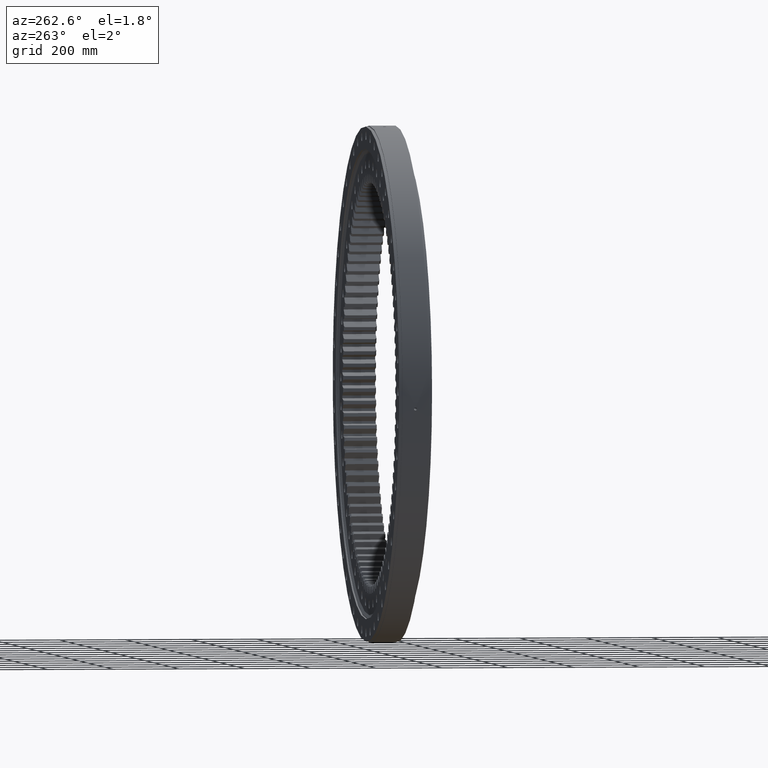
[diagram: clean part render]
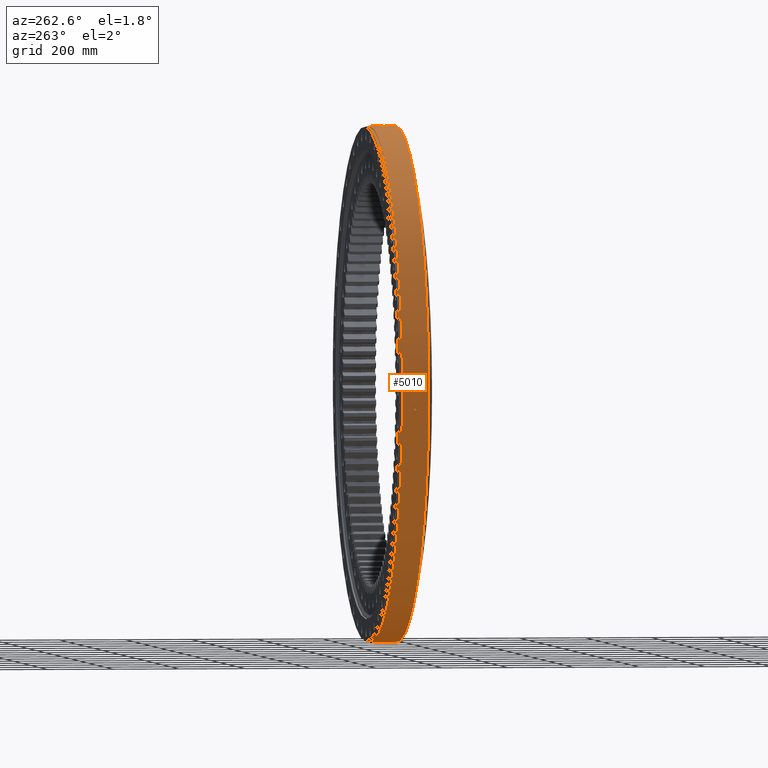
[diagram: same view with one face highlighted and labeled with its STEP entity id]
A machine part, auxiliary view. The second image highlights one B-rep face of the part: STEP entity #5010.
In plain terms, the highlighted cylindrical surface (partial cylindrical patch) has radius 780 mm, axis along (0, -1, -0).
Its self-contained STEP definition (entity closure, byte-faithful):
#540 = FACE_BOUND ( 'NONE', #13653, .T. ) ;
#652 = VECTOR ( 'NONE', #10437, 1000.000000000000000 ) ;
#961 = VERTEX_POINT ( 'NONE', #16702 ) ;
#1542 = CIRCLE ( 'NONE', #24289, 780.0000000000000000 ) ;
#2136 = EDGE_CURVE ( 'NONE', #7273, #961, #12283, .T. ) ;
#2426 = CARTESIAN_POINT ( 'NONE',  ( -4.694788894176785100E-015, 40.00000000000014200, 1.397686942154318400E-015 ) ) ;
#3313 = CARTESIAN_POINT ( 'NONE',  ( -49.84914357301659700, -4.355729221273335800, 778.4055148812640300 ) ) ;
#4296 = B_SPLINE_CURVE_WITH_KNOTS ( 'NONE', 3,
 ( #26614, #26247, #26053, #25983, #25883, #25853, #25848, #25778, #25743, #25595, #25587, #25521, #25498, #25496, #25470, #25426, #25396, #25393, #25325, #25273, #25233, #25207, #25169, #25127, #25103, #25099, #25023, #24994, #24960, #24953, #24899, #24860, #24856, #24796 ),
 .UNSPECIFIED., .F., .F.,
 ( 4, 2, 2, 2, 2, 2, 2, 2, 2, 2, 2, 2, 2, 2, 2, 2, 4 ),
 ( 1.074762393797397800E-018, 0.0008793179351289042300, 0.001758635870257807400, 0.002637953805386710200, 0.003517271740515613400, 0.004396589675644516300, 0.005275907610773419500, 0.006155225545902322800, 0.007034543481031226000, 0.007913861416160130100, 0.008793179351289032500, 0.009672497286417936600, 0.01055181522154683900, 0.01143113315667574300, 0.01231045109180464600, 0.01318976902693355000, 0.01406908696206245200 ),
 .UNSPECIFIED. ) ;
#4473 = CARTESIAN_POINT ( 'NONE',  ( -55.50395696409336200, -1.191663288567802800E-008, 778.0226929603841200 ) ) ;
#4583 = CARTESIAN_POINT ( 'NONE',  ( -55.50395696409339800, -0.2972590398184704100, 778.0226929603844600 ) ) ;
#4686 = CARTESIAN_POINT ( 'NONE',  ( -55.47486228584178700, -0.5914354532429624300, 778.0247701997225200 ) ) ;
#4785 = CARTESIAN_POINT ( 'NONE',  ( -55.35870976945393800, -1.173647210046652200, 778.0330434130833100 ) ) ;
#4873 = CARTESIAN_POINT ( 'NONE',  ( -55.27264130081599100, -1.455745467214809600, 778.0391685290567200 ) ) ;
#5005 = CARTESIAN_POINT ( 'NONE',  ( -55.04833319098530400, -1.997034753935019500, 778.0550710937171700 ) ) ;
#5010 = ADVANCED_FACE ( 'NONE', ( #540, #7626, #13315 ), #18140, .T. ) ;
#5115 = CARTESIAN_POINT ( 'NONE',  ( -54.90821490620543000, -2.259570779800355000, 778.0649812028916600 ) ) ;
#5194 = CARTESIAN_POINT ( 'NONE',  ( -53.97957031901950800, -3.391803341662482700, 778.1299693456908200 ) ) ;
#5223 = CARTESIAN_POINT ( 'NONE',  ( -54.39428581073345700, -2.976677175087144400, 778.1010891117503000 ) ) ;
#5364 = CARTESIAN_POINT ( 'NONE',  ( -53.74829391534717600, -3.581693943415869000, 778.1459893008853900 ) ) ;
#5538 = CARTESIAN_POINT ( 'NONE',  ( -53.26051258779922600, -3.907537433875630600, 778.1795278486508800 ) ) ;
#5578 = CARTESIAN_POINT ( 'NONE',  ( -53.00253340720728800, -4.045624433861426000, 778.1971510725071500 ) ) ;
#5607 = CARTESIAN_POINT ( 'NONE',  ( -52.45794350086281100, -4.271337544444923800, 778.2340513294244600 ) ) ;
#5708 = CARTESIAN_POINT ( 'NONE',  ( -52.17342480459289800, -4.357379535394106700, 778.2531827100194700 ) ) ;
#5820 = CARTESIAN_POINT ( 'NONE',  ( -51.59970583353363300, -4.471227448999602700, 778.2914319276604800 ) ) ;
#5893 = CARTESIAN_POINT ( 'NONE',  ( -51.30671751956293700, -4.500248252878238400, 778.3108047330100600 ) ) ;
#5915 = LINE ( 'NONE', #16369, #24849 ) ;
#5935 = CARTESIAN_POINT ( 'NONE',  ( -50.71460167549569300, -4.499748580087064900, 778.3496111669061300 ) ) ;
#6058 = CARTESIAN_POINT ( 'NONE',  ( -50.42314983927573000, -4.470446165586584400, 778.3685429620181800 ) ) ;
#6132 = CARTESIAN_POINT ( 'NONE',  ( -49.56355915301539700, -4.268830562518370900, 778.4237455310402500 ) ) ;
#6162 = CARTESIAN_POINT ( 'NONE',  ( -48.76273812759185900, -3.904566927462565400, 778.4743125145275800 ) ) ;
#6320 = CARTESIAN_POINT ( 'NONE',  ( -48.27429981455153300, -3.577391859910664900, 778.5047539046122400 ) ) ;
#6331 = CARTESIAN_POINT ( 'NONE',  ( -47.44380163121300600, -2.745436544223951000, 778.5557865492912700 ) ) ;
#6411 = CARTESIAN_POINT ( 'NONE',  ( -47.62970898566337800, -2.972153885208485700, 778.5444456105376500 ) ) ;
#6482 = CARTESIAN_POINT ( 'NONE',  ( -46.97642868434872600, -1.991444298768980700, 778.5841172952127600 ) ) ;
#6552 = CARTESIAN_POINT ( 'NONE',  ( -46.75272375233436900, -1.449882988554883600, 778.5975824378336900 ) ) ;
#6587 = CARTESIAN_POINT ( 'NONE',  ( -46.66645876322883200, -1.165409874945901600, 778.6027516867357000 ) ) ;
#6620 = CARTESIAN_POINT ( 'NONE',  ( -46.55163983603154100, -0.5854524461712448100, 778.6096249958853800 ) ) ;
#6879 = CARTESIAN_POINT ( 'NONE',  ( -46.52322665494592300, -1.191663346801548200E-008, 778.6113211234554700 ) ) ;
#7057 = CARTESIAN_POINT ( 'NONE',  ( -46.52322665494592300, -1.191663346801548200E-008, 778.6113211234554700 ) ) ;
#7098 = CARTESIAN_POINT ( 'NONE',  ( -46.52322665494590800, 0.2936959525001911500, 778.6113211234551300 ) ) ;
#7147 = VERTEX_POINT ( 'NONE', #29808 ) ;
#7197 = CARTESIAN_POINT ( 'NONE',  ( -46.55260371073139700, 0.5919604731874318300, 778.6095673666088700 ) ) ;
#7228 = CARTESIAN_POINT ( 'NONE',  ( -46.66741236925686600, 1.168559424102521200, 778.6026945302871800 ) ) ;
#7234 = CARTESIAN_POINT ( 'NONE',  ( -46.75231736424668600, 1.449116080654817600, 778.5976069691255400 ) ) ;
#7257 = CARTESIAN_POINT ( 'NONE',  ( -46.97780282519429600, 1.994553032517874600, 778.5840345130982300 ) ) ;
#7273 = VERTEX_POINT ( 'NONE', #27685 ) ;
#7287 = CARTESIAN_POINT ( 'NONE',  ( -47.11837591520003300, 2.257523350805082300, 778.5755488110493200 ) ) ;
#7292 = CARTESIAN_POINT ( 'NONE',  ( -47.44369261204333600, 2.744954639067043600, 778.5557928540811200 ) ) ;
#7420 = VERTEX_POINT ( 'NONE', #25083 ) ;
#7438 = CARTESIAN_POINT ( 'NONE',  ( -47.62992599242463900, 2.972768192775557600, 778.5444330867019300 ) ) ;
#7444 = CARTESIAN_POINT ( 'NONE',  ( -48.04932696575831800, 3.392751000907746400, 778.5186615094562500 ) ) ;
#7470 = CARTESIAN_POINT ( 'NONE',  ( -48.27618944952313700, 3.578756085474676100, 778.5046364624162200 ) ) ;
#7509 = CARTESIAN_POINT ( 'NONE',  ( -48.76293852314622500, 3.904602214458481800, 778.4742996964209900 ) ) ;
#7548 = CARTESIAN_POINT ( 'NONE',  ( -49.02598205619862900, 4.045566661986369700, 778.4577877418859100 ) ) ;
#7556 = CARTESIAN_POINT ( 'NONE',  ( -49.56973244155400900, 4.270949395259672000, 778.4233525776563700 ) ) ;
#7582 = CARTESIAN_POINT ( 'NONE',  ( -49.84968894123130000, 4.355942315729162600, 778.4054803217858300 ) ) ;
#7615 = CARTESIAN_POINT ( 'NONE',  ( -50.42566956916996900, 4.470845037289014300, 778.3683800945596000 ) ) ;
#7617 = VERTEX_POINT ( 'NONE', #21510 ) ;
#7626 = FACE_BOUND ( 'NONE', #21815, .T. ) ;
#7657 = CARTESIAN_POINT ( 'NONE',  ( -50.72315351910881300, 4.500103720131336100, 778.3490527028803900 ) ) ;
#7665 = CARTESIAN_POINT ( 'NONE',  ( -51.30891071940003900, 4.499895690884436300, 778.3106589448608500 ) ) ;
#7724 = CARTESIAN_POINT ( 'NONE',  ( -51.60028322795572800, 4.471354307561180800, 778.2913947508732200 ) ) ;
#7755 = CARTESIAN_POINT ( 'NONE',  ( -52.17993505043647000, 4.355843198341657900, 778.2527473453573100 ) ) ;
#7760 = VERTEX_POINT ( 'NONE', #17800 ) ;
#7761 = CARTESIAN_POINT ( 'NONE',  ( -52.46288832430056500, 4.269502317692230900, 778.2337172558366100 ) ) ;
#7821 = CARTESIAN_POINT ( 'NONE',  ( -53.00322163915681300, 4.045122667237238900, 778.1971034519700700 ) ) ;
#7858 = CARTESIAN_POINT ( 'NONE',  ( -53.26458334573008800, 3.905345519600695000, 778.1792497087282100 ) ) ;
#7884 = CARTESIAN_POINT ( 'NONE',  ( -53.75542517380560500, 3.576390565677366200, 778.1454971794264600 ) ) ;
#7888 = CARTESIAN_POINT ( 'NONE',  ( -46.52322665494591500, -0.2936296904796089100, 778.6113211234553500 ) ) ;
#7925 = CARTESIAN_POINT ( 'NONE',  ( -53.98147792850658500, 3.390113801547519000, 778.1298369526471100 ) ) ;
#7962 = CARTESIAN_POINT ( 'NONE',  ( -54.39575901906711400, 2.974980699756850200, 778.1009860654583000 ) ) ;
#7966 = CARTESIAN_POINT ( 'NONE',  ( -54.58540843334259300, 2.743367386342545600, 778.0876941952298000 ) ) ;
#7991 = CARTESIAN_POINT ( 'NONE',  ( -54.91123342244150500, 2.254168528153292200, 778.0647679441027500 ) ) ;
#8022 = CARTESIAN_POINT ( 'NONE',  ( -55.04914016879796200, 1.995678894004786300, 778.0550140747906200 ) ) ;
#8061 = CARTESIAN_POINT ( 'NONE',  ( -55.27449701930163400, 1.450668767809029100, 778.0390367709767400 ) ) ;
#8069 = CARTESIAN_POINT ( 'NONE',  ( -55.36081458175257100, 1.164865000228676700, 778.0328935697435800 ) ) ;
#8089 = CARTESIAN_POINT ( 'NONE',  ( -55.50395696409336200, -1.191663288567802800E-008, 778.0226929603841200 ) ) ;
#8091 = CARTESIAN_POINT ( 'NONE',  ( -55.50395696409336200, -1.191663288567802800E-008, 778.0226929603841200 ) ) ;
#8260 = EDGE_CURVE ( 'NONE', #15624, #9989, #16486, .T. ) ;
#8279 = CARTESIAN_POINT ( 'NONE',  ( -55.47485261993542600, 0.5896830564248469700, 778.0247708103260000 ) ) ;
#8394 = CARTESIAN_POINT ( 'NONE',  ( -55.50395696409338300, 0.2973261211517332900, 778.0226929603841200 ) ) ;
#9989 = VERTEX_POINT ( 'NONE', #17814 ) ;
#10265 = DIRECTION ( 'NONE',  ( -5.551115123125783900E-017, 8.896017825522088100E-017, -1.000000000000000000 ) ) ;
#10373 = DIRECTION ( 'NONE',  ( -1.173697223544192200E-016, 1.000000000000000000, 8.822830751849692900E-017 ) ) ;
#10437 = DIRECTION ( 'NONE',  ( 1.173697223544192200E-016, -1.000000000000000000, -3.494217355385783800E-017 ) ) ;
#10655 = CARTESIAN_POINT ( 'NONE',  ( 4.590003909538970900E-014, -22.16364734299519800, 780.0000000000000000 ) ) ;
#10699 = CARTESIAN_POINT ( 'NONE',  ( -47.11527095205012500, -2.252549668196207400, 778.5757370517799200 ) ) ;
#11564 = DIRECTION ( 'NONE',  ( 1.173697223544192200E-016, -1.000000000000000000, -3.494217355385783800E-017 ) ) ;
#12178 = EDGE_LOOP ( 'NONE', ( #18091, #19527, #25398, #18820 ) ) ;
#12283 = B_SPLINE_CURVE_WITH_KNOTS ( 'NONE', 3,
 ( #17989, #18089, #17645, #24919, #17506, #17480, #17476, #17378, #17370, #17132, #17072, #16971, #16874, #16839, #16521, #16241, #15755, #15443, #15150, #15372, #15335, #15300, #15298, #15078, #14951, #14300, #14775, #14735, #14473, #14544, #14466, #14677, #14276, #14331 ),
 .UNSPECIFIED., .F., .F.,
 ( 4, 2, 2, 2, 2, 2, 2, 2, 2, 2, 2, 2, 2, 2, 2, 2, 4 ),
 ( 0.01406908696206245200, 0.01494820643910137000, 0.01582732591614028800, 0.01670644539317920800, 0.01758556487021812800, 0.01846468434725704800, 0.01934380382429596800, 0.02022292330133488800, 0.02110204277837380800, 0.02198116225541272800, 0.02286028173245164800, 0.02373940120949056800, 0.02461852068652948700, 0.02549764016356840700, 0.02637675964060732700, 0.02725587911764624700, 0.02813499859468516700 ),
 .UNSPECIFIED. ) ;
#13315 = FACE_OUTER_BOUND ( 'NONE', #12178, .T. ) ;
#13628 = ORIENTED_EDGE ( 'NONE', *, *, #2136, .T. ) ;
#13653 = EDGE_LOOP ( 'NONE', ( #19494, #20969 ) ) ;
#14276 = CARTESIAN_POINT ( 'NONE',  ( -778.0226929603841200, -0.2972590398185253100, -55.50395696409609100 ) ) ;
#14300 = CARTESIAN_POINT ( 'NONE',  ( -778.1010891117501800, -2.976677175087196800, -54.39428581073618600 ) ) ;
#14331 = CARTESIAN_POINT ( 'NONE',  ( -778.0226929603840100, -1.191668835744469300E-008, -55.50395696409608300 ) ) ;
#14405 = DIRECTION ( 'NONE',  ( 1.173697223544192200E-016, -1.000000000000000000, -3.494217355385783800E-017 ) ) ;
#14466 = CARTESIAN_POINT ( 'NONE',  ( -778.0330434130830800, -1.173647210046705000, -55.35870976945664500 ) ) ;
#14473 = CARTESIAN_POINT ( 'NONE',  ( -778.0550710937169500, -1.997034753935078300, -55.04833319098803900 ) ) ;
#14544 = CARTESIAN_POINT ( 'NONE',  ( -778.0391685290565000, -1.455745467214868400, -55.27264130081870500 ) ) ;
#14552 = CIRCLE ( 'NONE', #18147, 780.0000000000000000 ) ;
#14677 = CARTESIAN_POINT ( 'NONE',  ( -778.0247701997218400, -0.5914354532430172700, -55.47486228584449500 ) ) ;
#14735 = CARTESIAN_POINT ( 'NONE',  ( -778.0649812028914300, -2.259570779800410500, -54.90821490620814400 ) ) ;
#14775 = CARTESIAN_POINT ( 'NONE',  ( -778.0880627137859200, -2.750357340521893100, -54.58015848960110400 ) ) ;
#14776 = CARTESIAN_POINT ( 'NONE',  ( 4.694788894176749600E-015, -39.99999999999984400, -1.397686942154308100E-015 ) ) ;
#14951 = CARTESIAN_POINT ( 'NONE',  ( -778.1299693456906000, -3.391803341662533700, -53.97957031902223000 ) ) ;
#15078 = CARTESIAN_POINT ( 'NONE',  ( -778.1459893008853900, -3.581693943415919200, -53.74829391534990500 ) ) ;
#15150 = CARTESIAN_POINT ( 'NONE',  ( -778.2914319276601400, -4.471227448999658600, -51.59970583353636900 ) ) ;
#15298 = CARTESIAN_POINT ( 'NONE',  ( -778.1795278486508800, -3.907537433875682100, -53.26051258780196900 ) ) ;
#15300 = CARTESIAN_POINT ( 'NONE',  ( -778.1971510725069300, -4.045624433861478400, -53.00253340721000900 ) ) ;
#15335 = CARTESIAN_POINT ( 'NONE',  ( -778.2340513294242300, -4.271337544444976200, -52.45794350086553200 ) ) ;
#15372 = CARTESIAN_POINT ( 'NONE',  ( -778.2531827100190200, -4.357379535394158200, -52.17342480459563300 ) ) ;
#15443 = CARTESIAN_POINT ( 'NONE',  ( -778.3108047330102900, -4.500248252878294300, -51.30671751956565200 ) ) ;
#15607 = EDGE_CURVE ( 'NONE', #7617, #7420, #24442, .T. ) ;
#15624 = VERTEX_POINT ( 'NONE', #8089 ) ;
#15755 = CARTESIAN_POINT ( 'NONE',  ( -778.3496111669060200, -4.499748580087121800, -50.71460167549842900 ) ) ;
#16241 = CARTESIAN_POINT ( 'NONE',  ( -778.3685429620180700, -4.470446165586640300, -50.42314983927845900 ) ) ;
#16369 = CARTESIAN_POINT ( 'NONE',  ( -1.362198071588660500E-013, -22.16364734299514100, -780.0000000000000000 ) ) ;
#16486 = B_SPLINE_CURVE_WITH_KNOTS ( 'NONE', 3,
 ( #8091, #8394, #8279, #8069, #8061, #8022, #7991, #7966, #7962, #7925, #7884, #7858, #7821, #7761, #7755, #7724, #7665, #7657, #7615, #7582, #7556, #7548, #7509, #7470, #7444, #7438, #7292, #7287, #7257, #7234, #7228, #7197, #7098, #7057 ),
 .UNSPECIFIED., .F., .F.,
 ( 4, 2, 2, 2, 2, 2, 2, 2, 2, 2, 2, 2, 2, 2, 2, 2, 4 ),
 ( 2.180248051075275200E-018, 0.0008793179351289065000, 0.001758635870257810800, 0.002637953805386715000, 0.003517271740515619500, 0.004396589675644524100, 0.005275907610773428200, 0.006155225545902333200, 0.007034543481031237300, 0.007913861416160140500, 0.008793179351289044700, 0.009672497286417948800, 0.01055181522154685300, 0.01143113315667575500, 0.01231045109180465800, 0.01318976902693356200, 0.01406908696206246400 ),
 .UNSPECIFIED. ) ;
#16521 = CARTESIAN_POINT ( 'NONE',  ( -778.4055148812639100, -4.355729221273390900, -49.84914357301931200 ) ) ;
#16702 = CARTESIAN_POINT ( 'NONE',  ( -778.0226929603840100, -1.191668835744469300E-008, -55.50395696409608300 ) ) ;
#16839 = CARTESIAN_POINT ( 'NONE',  ( -778.4237455310399100, -4.268830562518429500, -49.56355915301813300 ) ) ;
#16874 = CARTESIAN_POINT ( 'NONE',  ( -778.4581278844744900, -4.042877570510349000, -49.02057866944306100 ) ) ;
#16971 = CARTESIAN_POINT ( 'NONE',  ( -778.4743125145272400, -3.904566927462622200, -48.76273812759456700 ) ) ;
#17072 = CARTESIAN_POINT ( 'NONE',  ( -778.5047539046120200, -3.577391859910723900, -48.27429981455424700 ) ) ;
#17132 = CARTESIAN_POINT ( 'NONE',  ( -778.5190198591584500, -3.387315531045963700, -48.04350826713057600 ) ) ;
#17370 = CARTESIAN_POINT ( 'NONE',  ( -778.5444456105376500, -2.972153885208545200, -47.62970898566610600 ) ) ;
#17378 = CARTESIAN_POINT ( 'NONE',  ( -778.5557865492910400, -2.745436544224008700, -47.44380163121573400 ) ) ;
#17476 = CARTESIAN_POINT ( 'NONE',  ( -778.5757370517798100, -2.252549668196265100, -47.11527095205283900 ) ) ;
#17480 = CARTESIAN_POINT ( 'NONE',  ( -778.5841172952127600, -1.991444298769037500, -46.97642868435145400 ) ) ;
#17506 = CARTESIAN_POINT ( 'NONE',  ( -778.5975824378335800, -1.449882988554941100, -46.75272375233710400 ) ) ;
#17645 = CARTESIAN_POINT ( 'NONE',  ( -778.6096249958856100, -0.5854524461713026500, -46.55163983603427600 ) ) ;
#17800 = CARTESIAN_POINT ( 'NONE',  ( -1.388211482938746700E-013, -39.99999999999981500, -780.0000000000000000 ) ) ;
#17814 = CARTESIAN_POINT ( 'NONE',  ( -46.52322665494592300, -1.191663346801548200E-008, 778.6113211234554700 ) ) ;
#17989 = CARTESIAN_POINT ( 'NONE',  ( -778.6113211234552400, -1.191669056099729700E-008, -46.52322665494863700 ) ) ;
#18089 = CARTESIAN_POINT ( 'NONE',  ( -778.6113211234552400, -0.2936296904796665800, -46.52322665494864400 ) ) ;
#18091 = ORIENTED_EDGE ( 'NONE', *, *, #20932, .F. ) ;
#18140 = CYLINDRICAL_SURFACE ( 'NONE', #24266, 780.0000000000000000 ) ;
#18147 = AXIS2_PLACEMENT_3D ( 'NONE', #14776, #14405, #29316 ) ;
#18680 = EDGE_CURVE ( 'NONE', #9989, #15624, #21789, .T. ) ;
#18762 = CARTESIAN_POINT ( 'NONE',  ( -49.02057866944032600, -4.042877570510290400, 778.4581278844746100 ) ) ;
#18820 = ORIENTED_EDGE ( 'NONE', *, *, #15607, .F. ) ;
#19494 = ORIENTED_EDGE ( 'NONE', *, *, #8260, .T. ) ;
#19527 = ORIENTED_EDGE ( 'NONE', *, *, #30042, .T. ) ;
#20210 = CARTESIAN_POINT ( 'NONE',  ( -54.58015848959838200, -2.750357340521838000, 778.0880627137860300 ) ) ;
#20932 = EDGE_CURVE ( 'NONE', #7147, #7617, #1542, .T. ) ;
#20969 = ORIENTED_EDGE ( 'NONE', *, *, #18680, .T. ) ;
#21510 = CARTESIAN_POINT ( 'NONE',  ( 4.329869796038109200E-014, 40.00000000000007100, 780.0000000000000000 ) ) ;
#21789 = B_SPLINE_CURVE_WITH_KNOTS ( 'NONE', 3,
 ( #6879, #7888, #6620, #6587, #6552, #6482, #10699, #6331, #6411, #30032, #6320, #6162, #18762, #6132, #3313, #6058, #5935, #5893, #5820, #5708, #5607, #5578, #5538, #5364, #5194, #5223, #20210, #5115, #5005, #4873, #4785, #4686, #4583, #4473 ),
 .UNSPECIFIED., .F., .F.,
 ( 4, 2, 2, 2, 2, 2, 2, 2, 2, 2, 2, 2, 2, 2, 2, 2, 4 ),
 ( 0.01406908696206246400, 0.01494820643910138600, 0.01582732591614030600, 0.01670644539317922600, 0.01758556487021814600, 0.01846468434725706500, 0.01934380382429598500, 0.02022292330133490900, 0.02110204277837382900, 0.02198116225541274900, 0.02286028173245167200, 0.02373940120949059200, 0.02461852068652951200, 0.02549764016356843200, 0.02637675964060735200, 0.02725587911764627100, 0.02813499859468518800 ),
 .UNSPECIFIED. ) ;
#21815 = EDGE_LOOP ( 'NONE', ( #24634, #13628 ) ) ;
#24266 = AXIS2_PLACEMENT_3D ( 'NONE', #25665, #26064, #25690 ) ;
#24289 = AXIS2_PLACEMENT_3D ( 'NONE', #2426, #10373, #10265 ) ;
#24442 = LINE ( 'NONE', #10655, #652 ) ;
#24634 = ORIENTED_EDGE ( 'NONE', *, *, #26349, .T. ) ;
#24796 = CARTESIAN_POINT ( 'NONE',  ( -778.6113211234552400, -1.191669056099729700E-008, -46.52322665494863700 ) ) ;
#24849 = VECTOR ( 'NONE', #11564, 1000.000000000000000 ) ;
#24856 = CARTESIAN_POINT ( 'NONE',  ( -778.6113211234554700, 0.2936959525001343600, -46.52322665494864400 ) ) ;
#24860 = CARTESIAN_POINT ( 'NONE',  ( -778.6095673666087600, 0.5919604731873751000, -46.55260371073413200 ) ) ;
#24899 = CARTESIAN_POINT ( 'NONE',  ( -778.6026945302871800, 1.168559424102465300, -46.66741236925958700 ) ) ;
#24919 = CARTESIAN_POINT ( 'NONE',  ( -778.6027516867354700, -1.165409874945959400, -46.66645876323156000 ) ) ;
#24953 = CARTESIAN_POINT ( 'NONE',  ( -778.5976069691256500, 1.449116080654759200, -46.75231736424940000 ) ) ;
#24960 = CARTESIAN_POINT ( 'NONE',  ( -778.5840345130983500, 1.994553032517818000, -46.97780282519702400 ) ) ;
#24994 = CARTESIAN_POINT ( 'NONE',  ( -778.5755488110494300, 2.257523350805028100, -47.11837591520275500 ) ) ;
#25023 = CARTESIAN_POINT ( 'NONE',  ( -778.5557928540808900, 2.744954639066990300, -47.44369261204605000 ) ) ;
#25083 = CARTESIAN_POINT ( 'NONE',  ( 4.799348685455785600E-014, -39.99999999999987200, 780.0000000000000000 ) ) ;
#25099 = CARTESIAN_POINT ( 'NONE',  ( -778.5444330867013600, 2.972768192775503000, -47.62992599242737400 ) ) ;
#25103 = CARTESIAN_POINT ( 'NONE',  ( -778.5186615094562500, 3.392751000907690900, -48.04932696576104700 ) ) ;
#25127 = CARTESIAN_POINT ( 'NONE',  ( -778.5046364624159900, 3.578756085474622300, -48.27618944952586600 ) ) ;
#25169 = CARTESIAN_POINT ( 'NONE',  ( -778.4742996964206400, 3.904602214458426300, -48.76293852314893900 ) ) ;
#25207 = CARTESIAN_POINT ( 'NONE',  ( -778.4577877418854500, 4.045566661986311100, -49.02598205620132200 ) ) ;
#25233 = CARTESIAN_POINT ( 'NONE',  ( -778.4233525776561500, 4.270949395259615100, -49.56973244155672400 ) ) ;
#25273 = CARTESIAN_POINT ( 'NONE',  ( -778.4054803217858300, 4.355942315729104800, -49.84968894123401400 ) ) ;
#25325 = CARTESIAN_POINT ( 'NONE',  ( -778.3683800945594800, 4.470845037288958300, -50.42566956917267600 ) ) ;
#25393 = CARTESIAN_POINT ( 'NONE',  ( -778.3490527028803900, 4.500103720131280100, -50.72315351911155500 ) ) ;
#25396 = CARTESIAN_POINT ( 'NONE',  ( -778.3106589448606200, 4.499895690884380400, -51.30891071940276000 ) ) ;
#25398 = ORIENTED_EDGE ( 'NONE', *, *, #25938, .F. ) ;
#25426 = CARTESIAN_POINT ( 'NONE',  ( -778.2913947508727700, 4.471354307561125700, -51.60028322795845000 ) ) ;
#25470 = CARTESIAN_POINT ( 'NONE',  ( -778.2527473453570800, 4.355843198341604600, -52.17993505043919100 ) ) ;
#25496 = CARTESIAN_POINT ( 'NONE',  ( -778.2337172558363800, 4.269502317692173100, -52.46288832430327200 ) ) ;
#25498 = CARTESIAN_POINT ( 'NONE',  ( -778.1971034519698400, 4.045122667237180300, -53.00322163915953400 ) ) ;
#25521 = CARTESIAN_POINT ( 'NONE',  ( -778.1792497087279800, 3.905345519600636400, -53.26458334573283100 ) ) ;
#25587 = CARTESIAN_POINT ( 'NONE',  ( -778.1454971794263400, 3.576390565677307200, -53.75542517380833400 ) ) ;
#25595 = CARTESIAN_POINT ( 'NONE',  ( -778.1298369526468800, 3.390113801547464300, -53.98147792850930000 ) ) ;
#25665 = CARTESIAN_POINT ( 'NONE',  ( 2.601341135008604100E-015, -22.16364734299516900, -7.744460120454373600E-016 ) ) ;
#25690 = DIRECTION ( 'NONE',  ( 5.551115123125782700E-017, -3.558407130208835400E-017, 1.000000000000000000 ) ) ;
#25743 = CARTESIAN_POINT ( 'NONE',  ( -778.1009860654581900, 2.974980699756796500, -54.39575901906982800 ) ) ;
#25778 = CARTESIAN_POINT ( 'NONE',  ( -778.0876941952293500, 2.743367386342487900, -54.58540843334531400 ) ) ;
#25848 = CARTESIAN_POINT ( 'NONE',  ( -778.0647679441025300, 2.254168528153234900, -54.91123342244421900 ) ) ;
#25853 = CARTESIAN_POINT ( 'NONE',  ( -778.0550140747899400, 1.995678894004728500, -55.04914016880066900 ) ) ;
#25883 = CARTESIAN_POINT ( 'NONE',  ( -778.0390367709765100, 1.450668767808972500, -55.27449701930434100 ) ) ;
#25938 = EDGE_CURVE ( 'NONE', #7420, #7760, #14552, .T. ) ;
#25983 = CARTESIAN_POINT ( 'NONE',  ( -778.0328935697435800, 1.164865000228620100, -55.36081458175529200 ) ) ;
#26053 = CARTESIAN_POINT ( 'NONE',  ( -778.0247708103256600, 0.5896830564247910200, -55.47485261993814700 ) ) ;
#26064 = DIRECTION ( 'NONE',  ( 1.173697223544192200E-016, -1.000000000000000000, -3.494217355385783800E-017 ) ) ;
#26247 = CARTESIAN_POINT ( 'NONE',  ( -778.0226929603841200, 0.2973261211516774500, -55.50395696409609100 ) ) ;
#26349 = EDGE_CURVE ( 'NONE', #961, #7273, #4296, .T. ) ;
#26614 = CARTESIAN_POINT ( 'NONE',  ( -778.0226929603840100, -1.191668835744469300E-008, -55.50395696409608300 ) ) ;
#27685 = CARTESIAN_POINT ( 'NONE',  ( -778.6113211234552400, -1.191669056099729700E-008, -46.52322665494863700 ) ) ;
#29316 = DIRECTION ( 'NONE',  ( 5.551115123125782700E-017, -3.558407130208835400E-017, 1.000000000000000000 ) ) ;
#29808 = CARTESIAN_POINT ( 'NONE',  ( -1.388211482938746700E-013, 40.00000000000020600, -780.0000000000000000 ) ) ;
#30032 = CARTESIAN_POINT ( 'NONE',  ( -48.04350826712785500, -3.387315531045904200, 778.5190198591583300 ) ) ;
#30042 = EDGE_CURVE ( 'NONE', #7147, #7760, #5915, .T. ) ;